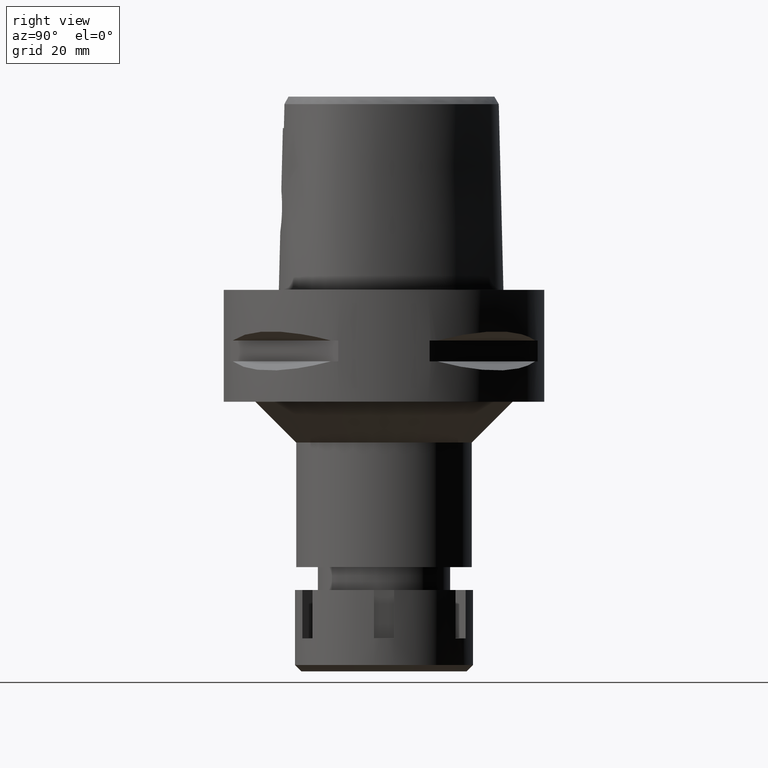
[diagram: clean part render]
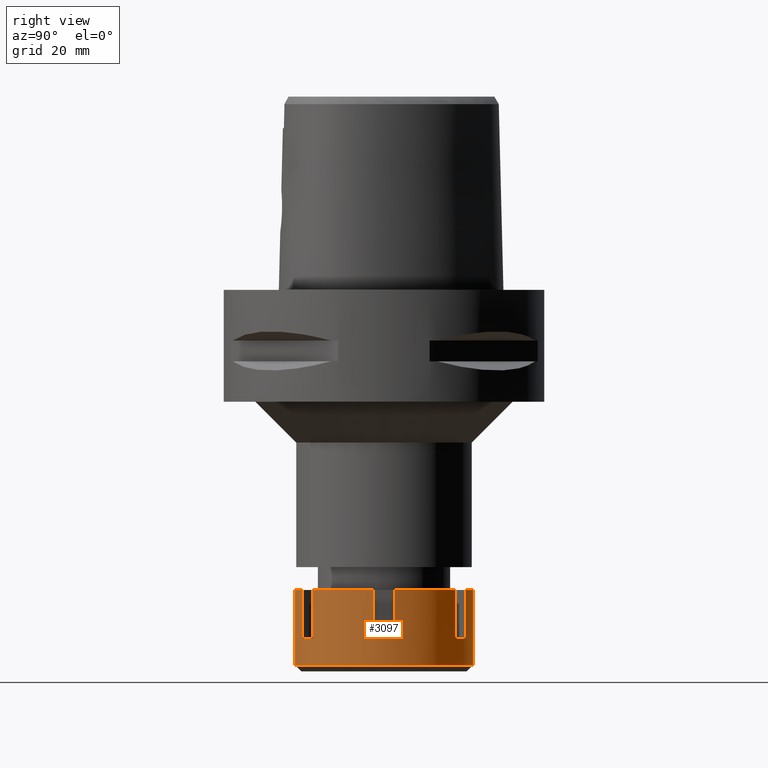
[diagram: same view with one face highlighted and labeled with its STEP entity id]
A machine part, right view. The second image highlights one B-rep face of the part: STEP entity #3097.
In plain terms, the highlighted cylindrical surface (partial cylindrical patch) has radius 17.5 mm, axis along (0, 0, -1).
Its self-contained STEP definition (entity closure, byte-faithful):
#11 = CYLINDRICAL_SURFACE ( 'NONE', #2261, 17.50000000000000000 ) ;
#38 = LINE ( 'NONE', #716, #4165 ) ;
#41 = AXIS2_PLACEMENT_3D ( 'NONE', #727, #753, #1884 ) ;
#52 = EDGE_CURVE ( 'NONE', #3020, #4684, #4182, .T. ) ;
#80 = ORIENTED_EDGE ( 'NONE', *, *, #2857, .T. ) ;
#96 = LINE ( 'NONE', #2669, #912 ) ;
#129 = AXIS2_PLACEMENT_3D ( 'NONE', #4607, #4209, #827 ) ;
#218 = CARTESIAN_POINT ( 'NONE',  ( 0.0000000000000000000, 0.0000000000000000000, 0.0000000000000000000 ) ) ;
#259 = ORIENTED_EDGE ( 'NONE', *, *, #4009, .T. ) ;
#318 = DIRECTION ( 'NONE',  ( 0.0000000000000000000, 0.0000000000000000000, -1.000000000000000000 ) ) ;
#350 = CARTESIAN_POINT ( 'NONE',  ( 10.42472013291999922, 14.05614492490999901, -9.500000000000000000 ) ) ;
#398 = CARTESIAN_POINT ( 'NONE',  ( 0.0000000000000000000, 0.0000000000000000000, -9.500000000000000000 ) ) ;
#473 = ORIENTED_EDGE ( 'NONE', *, *, #52, .T. ) ;
#496 = CIRCLE ( 'NONE', #3839, 17.50000000000000355 ) ;
#531 = DIRECTION ( 'NONE',  ( 0.5956982933103188715, -0.8032082814234259294, 0.0000000000000000000 ) ) ;
#621 = CARTESIAN_POINT ( 'NONE',  ( 6.960618517789000315, 16.05614492491000078, -9.500000000000000000 ) ) ;
#680 = AXIS2_PLACEMENT_3D ( 'NONE', #218, #3098, #2709 ) ;
#716 = CARTESIAN_POINT ( 'NONE',  ( 6.960618517787000137, -16.05614492491000078, 0.0000000000000000000 ) ) ;
#727 = CARTESIAN_POINT ( 'NONE',  ( 0.0000000000000000000, 0.0000000000000000000, -14.75000000000000000 ) ) ;
#753 = DIRECTION ( 'NONE',  ( 0.0000000000000000000, 0.0000000000000000000, 1.000000000000000000 ) ) ;
#827 = DIRECTION ( 'NONE',  ( 0.3977496295877935850, -0.9174939957093850573, 0.0000000000000000000 ) ) ;
#875 = CARTESIAN_POINT ( 'NONE',  ( 0.0000000000000000000, 0.0000000000000000000, 0.0000000000000000000 ) ) ;
#902 = EDGE_CURVE ( 'NONE', #4431, #2516, #1925, .T. ) ;
#912 = VECTOR ( 'NONE', #3961, 1000.000000000000000 ) ;
#937 = CARTESIAN_POINT ( 'NONE',  ( 0.0000000000000000000, -17.50000000000000000, 0.0000000000000000000 ) ) ;
#958 = ORIENTED_EDGE ( 'NONE', *, *, #3936, .F. ) ;
#967 = ORIENTED_EDGE ( 'NONE', *, *, #1182, .F. ) ;
#973 = CARTESIAN_POINT ( 'NONE',  ( 17.38533865071000051, -2.000000000000000000, 0.0000000000000000000 ) ) ;
#1024 = VECTOR ( 'NONE', #3997, 1000.000000000000000 ) ;
#1045 = CARTESIAN_POINT ( 'NONE',  ( 0.0000000000000000000, 17.50000000000000000, -14.75000000000000000 ) ) ;
#1089 = VERTEX_POINT ( 'NONE', #4879 ) ;
#1094 = VERTEX_POINT ( 'NONE', #4069 ) ;
#1124 = DIRECTION ( 'NONE',  ( 0.9934479228979277154, -0.1142857142857031660, 0.0000000000000000000 ) ) ;
#1144 = ORIENTED_EDGE ( 'NONE', *, *, #902, .F. ) ;
#1181 = AXIS2_PLACEMENT_3D ( 'NONE', #4825, #5177, #3555 ) ;
#1182 = EDGE_CURVE ( 'NONE', #4092, #1589, #38, .T. ) ;
#1192 = AXIS2_PLACEMENT_3D ( 'NONE', #3219, #4898, #1124 ) ;
#1208 = VECTOR ( 'NONE', #2601, 1000.000000000000000 ) ;
#1336 = FACE_OUTER_BOUND ( 'NONE', #5364, .T. ) ;
#1391 = ORIENTED_EDGE ( 'NONE', *, *, #2259, .T. ) ;
#1445 = CARTESIAN_POINT ( 'NONE',  ( 17.38533865071000051, -2.000000000000000000, -9.500000000000000000 ) ) ;
#1589 = VERTEX_POINT ( 'NONE', #5086 ) ;
#1657 = EDGE_CURVE ( 'NONE', #4427, #4480, #3818, .T. ) ;
#1661 = EDGE_CURVE ( 'NONE', #5195, #1094, #96, .T. ) ;
#1672 = CARTESIAN_POINT ( 'NONE',  ( 10.42472013293000010, 14.05614492490999901, 0.0000000000000000000 ) ) ;
#1719 = DIRECTION ( 'NONE',  ( 0.0000000000000000000, 0.0000000000000000000, -1.000000000000000000 ) ) ;
#1724 = DIRECTION ( 'NONE',  ( 0.0000000000000000000, 0.0000000000000000000, -1.000000000000000000 ) ) ;
#1726 = CIRCLE ( 'NONE', #41, 17.50000000000000000 ) ;
#1731 = CARTESIAN_POINT ( 'NONE',  ( 6.960618517787000137, -16.05614492491000078, 0.0000000000000000000 ) ) ;
#1752 = EDGE_CURVE ( 'NONE', #3020, #4656, #4768, .T. ) ;
#1761 = ORIENTED_EDGE ( 'NONE', *, *, #3144, .F. ) ;
#1847 = DIRECTION ( 'NONE',  ( 0.0000000000000000000, 0.0000000000000000000, 1.000000000000000000 ) ) ;
#1879 = CARTESIAN_POINT ( 'NONE',  ( 0.0000000000000000000, 0.0000000000000000000, -9.500000000000000000 ) ) ;
#1884 = DIRECTION ( 'NONE',  ( 0.0000000000000000000, -1.000000000000000000, 0.0000000000000000000 ) ) ;
#1913 = DIRECTION ( 'NONE',  ( 0.0000000000000000000, 0.0000000000000000000, -1.000000000000000000 ) ) ;
#1925 = LINE ( 'NONE', #4434, #3380 ) ;
#1973 = DIRECTION ( 'NONE',  ( 0.5956982933099820299, 0.8032082814236758406, 0.0000000000000000000 ) ) ;
#2005 = CARTESIAN_POINT ( 'NONE',  ( 6.960618517790000404, 16.05614492491000078, -9.500000000000000000 ) ) ;
#2110 = DIRECTION ( 'NONE',  ( 0.9934479228979277154, 0.1142857142857031660, 0.0000000000000000000 ) ) ;
#2190 = CARTESIAN_POINT ( 'NONE',  ( 0.0000000000000000000, 17.50000000000000000, 0.0000000000000000000 ) ) ;
#2259 = EDGE_CURVE ( 'NONE', #5195, #3960, #2871, .T. ) ;
#2261 = AXIS2_PLACEMENT_3D ( 'NONE', #875, #3867, #3047 ) ;
#2315 = ORIENTED_EDGE ( 'NONE', *, *, #2553, .T. ) ;
#2441 = CIRCLE ( 'NONE', #2610, 17.50000000000000355 ) ;
#2516 = VERTEX_POINT ( 'NONE', #4502 ) ;
#2553 = EDGE_CURVE ( 'NONE', #4086, #4656, #1726, .T. ) ;
#2557 = LINE ( 'NONE', #937, #3305 ) ;
#2601 = DIRECTION ( 'NONE',  ( 0.0000000000000000000, -1.121909582779000024E-14, -1.000000000000000000 ) ) ;
#2610 = AXIS2_PLACEMENT_3D ( 'NONE', #1879, #2711, #531 ) ;
#2638 = CARTESIAN_POINT ( 'NONE',  ( 0.0000000000000000000, 17.50000000000000000, 0.0000000000000000000 ) ) ;
#2669 = CARTESIAN_POINT ( 'NONE',  ( 17.38533865071000051, 2.000000000000000000, -9.500000000000000000 ) ) ;
#2709 = DIRECTION ( 'NONE',  ( 0.0000000000000000000, 1.000000000000000000, 0.0000000000000000000 ) ) ;
#2711 = DIRECTION ( 'NONE',  ( 0.0000000000000000000, 0.0000000000000000000, -1.000000000000000000 ) ) ;
#2857 = EDGE_CURVE ( 'NONE', #4534, #1094, #496, .T. ) ;
#2871 = CIRCLE ( 'NONE', #4181, 17.50000000000000711 ) ;
#2885 = ORIENTED_EDGE ( 'NONE', *, *, #1657, .T. ) ;
#2950 = CIRCLE ( 'NONE', #1192, 17.50000000000000711 ) ;
#2977 = CARTESIAN_POINT ( 'NONE',  ( 17.38533865071000051, 2.000000000000000000, -9.500000000000000000 ) ) ;
#3020 = VERTEX_POINT ( 'NONE', #2190 ) ;
#3047 = DIRECTION ( 'NONE',  ( 0.0000000000000000000, -1.000000000000000000, 0.0000000000000000000 ) ) ;
#3082 = ORIENTED_EDGE ( 'NONE', *, *, #1752, .F. ) ;
#3097 = ADVANCED_FACE ( 'NONE', ( #1336 ), #11, .T. ) ;
#3098 = DIRECTION ( 'NONE',  ( 0.0000000000000000000, 0.0000000000000000000, -1.000000000000000000 ) ) ;
#3140 = CARTESIAN_POINT ( 'NONE',  ( 10.42472013293000010, 14.05614492490999901, 0.0000000000000000000 ) ) ;
#3144 = EDGE_CURVE ( 'NONE', #4534, #4480, #4282, .T. ) ;
#3219 = CARTESIAN_POINT ( 'NONE',  ( 0.0000000000000000000, 0.0000000000000000000, 0.0000000000000000000 ) ) ;
#3305 = VECTOR ( 'NONE', #4233, 1000.000000000000000 ) ;
#3380 = VECTOR ( 'NONE', #1847, 1000.000000000000000 ) ;
#3502 = DIRECTION ( 'NONE',  ( 0.0000000000000000000, 0.0000000000000000000, -1.000000000000000000 ) ) ;
#3555 = DIRECTION ( 'NONE',  ( 0.3977496295879985877, 0.9174939957092961285, 0.0000000000000000000 ) ) ;
#3610 = EDGE_CURVE ( 'NONE', #4431, #1589, #2441, .T. ) ;
#3664 = CIRCLE ( 'NONE', #129, 17.49999999999999645 ) ;
#3818 = CIRCLE ( 'NONE', #1181, 17.49999999999999645 ) ;
#3839 = AXIS2_PLACEMENT_3D ( 'NONE', #4068, #318, #1973 ) ;
#3861 = ORIENTED_EDGE ( 'NONE', *, *, #3610, .T. ) ;
#3867 = DIRECTION ( 'NONE',  ( 0.0000000000000000000, 0.0000000000000000000, -1.000000000000000000 ) ) ;
#3936 = EDGE_CURVE ( 'NONE', #4427, #4684, #4392, .T. ) ;
#3960 = VERTEX_POINT ( 'NONE', #1445 ) ;
#3961 = DIRECTION ( 'NONE',  ( 0.0000000000000000000, 0.0000000000000000000, 1.000000000000000000 ) ) ;
#3997 = DIRECTION ( 'NONE',  ( 0.0000000000000000000, 0.0000000000000000000, 1.000000000000000000 ) ) ;
#4009 = EDGE_CURVE ( 'NONE', #4092, #1089, #3664, .T. ) ;
#4068 = CARTESIAN_POINT ( 'NONE',  ( 0.0000000000000000000, 0.0000000000000000000, 0.0000000000000000000 ) ) ;
#4069 = CARTESIAN_POINT ( 'NONE',  ( 17.38533865071000051, 2.000000000000000000, 0.0000000000000000000 ) ) ;
#4086 = VERTEX_POINT ( 'NONE', #4663 ) ;
#4092 = VERTEX_POINT ( 'NONE', #1731 ) ;
#4165 = VECTOR ( 'NONE', #1724, 1000.000000000000000 ) ;
#4181 = AXIS2_PLACEMENT_3D ( 'NONE', #398, #1719, #2110 ) ;
#4182 = CIRCLE ( 'NONE', #680, 17.50000000000000000 ) ;
#4209 = DIRECTION ( 'NONE',  ( 0.0000000000000000000, 0.0000000000000000000, -1.000000000000000000 ) ) ;
#4233 = DIRECTION ( 'NONE',  ( 0.0000000000000000000, 0.0000000000000000000, -1.000000000000000000 ) ) ;
#4236 = ORIENTED_EDGE ( 'NONE', *, *, #4871, .F. ) ;
#4261 = CARTESIAN_POINT ( 'NONE',  ( 17.38533865071000051, -2.000000000000000000, 0.0000000000000000000 ) ) ;
#4282 = LINE ( 'NONE', #1672, #1208 ) ;
#4392 = LINE ( 'NONE', #621, #1024 ) ;
#4427 = VERTEX_POINT ( 'NONE', #2005 ) ;
#4431 = VERTEX_POINT ( 'NONE', #4956 ) ;
#4434 = CARTESIAN_POINT ( 'NONE',  ( 10.42472013293000010, -14.05614492490999901, -9.500000000000000000 ) ) ;
#4455 = CARTESIAN_POINT ( 'NONE',  ( 6.960618517789000315, 16.05614492491000078, 0.0000000000000000000 ) ) ;
#4480 = VERTEX_POINT ( 'NONE', #350 ) ;
#4502 = CARTESIAN_POINT ( 'NONE',  ( 10.42472013293000010, -14.05614492490999901, 0.0000000000000000000 ) ) ;
#4534 = VERTEX_POINT ( 'NONE', #3140 ) ;
#4607 = CARTESIAN_POINT ( 'NONE',  ( 0.0000000000000000000, 0.0000000000000000000, 0.0000000000000000000 ) ) ;
#4646 = ORIENTED_EDGE ( 'NONE', *, *, #1661, .F. ) ;
#4656 = VERTEX_POINT ( 'NONE', #1045 ) ;
#4663 = CARTESIAN_POINT ( 'NONE',  ( 0.0000000000000000000, -17.50000000000000000, -14.75000000000000000 ) ) ;
#4684 = VERTEX_POINT ( 'NONE', #4455 ) ;
#4708 = VECTOR ( 'NONE', #3502, 1000.000000000000000 ) ;
#4709 = EDGE_CURVE ( 'NONE', #5202, #2516, #2950, .T. ) ;
#4719 = ORIENTED_EDGE ( 'NONE', *, *, #5113, .T. ) ;
#4768 = LINE ( 'NONE', #2638, #4708 ) ;
#4812 = LINE ( 'NONE', #973, #5151 ) ;
#4825 = CARTESIAN_POINT ( 'NONE',  ( 0.0000000000000000000, 0.0000000000000000000, -9.500000000000000000 ) ) ;
#4871 = EDGE_CURVE ( 'NONE', #5202, #3960, #4812, .T. ) ;
#4879 = CARTESIAN_POINT ( 'NONE',  ( 0.0000000000000000000, -17.50000000000000000, 0.0000000000000000000 ) ) ;
#4898 = DIRECTION ( 'NONE',  ( 0.0000000000000000000, 0.0000000000000000000, -1.000000000000000000 ) ) ;
#4956 = CARTESIAN_POINT ( 'NONE',  ( 10.42472013293000010, -14.05614492490999901, -9.500000000000000000 ) ) ;
#5086 = CARTESIAN_POINT ( 'NONE',  ( 6.960618517787000137, -16.05614492491000078, -9.500000000000000000 ) ) ;
#5113 = EDGE_CURVE ( 'NONE', #1089, #4086, #2557, .T. ) ;
#5133 = ORIENTED_EDGE ( 'NONE', *, *, #4709, .T. ) ;
#5151 = VECTOR ( 'NONE', #1913, 1000.000000000000000 ) ;
#5177 = DIRECTION ( 'NONE',  ( 0.0000000000000000000, 0.0000000000000000000, -1.000000000000000000 ) ) ;
#5195 = VERTEX_POINT ( 'NONE', #2977 ) ;
#5202 = VERTEX_POINT ( 'NONE', #4261 ) ;
#5364 = EDGE_LOOP ( 'NONE', ( #1761, #80, #4646, #1391, #4236, #5133, #1144, #3861, #967, #259, #4719, #2315, #3082, #473, #958, #2885 ) ) ;